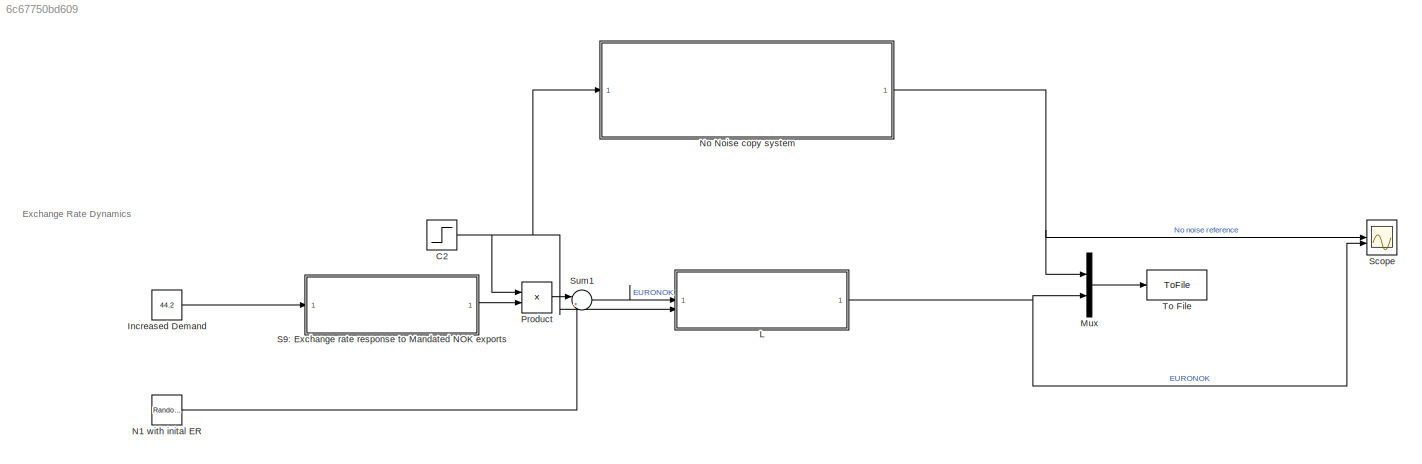
MODEL slx_6c67750bd609
KIND model
CONFIG AbsTol = auto
CONFIG EnableMultiTasking = off
CONFIG FixedStep = auto
CONFIG MaxStep = auto
CONFIG MinStep = auto
CONFIG RelTol = 1e-3
CONFIG SampleTimeConstraint = Unconstrained
CONFIG SolverName = FixedStepAuto
CONFIG StartTime = 0.0
CONFIG StopTime = 1.04
BLOCK [Step] C2
  SampleTime = 0
  Time = 0.1
BLOCK [Constant] Increased Demand
  Value = 44.2
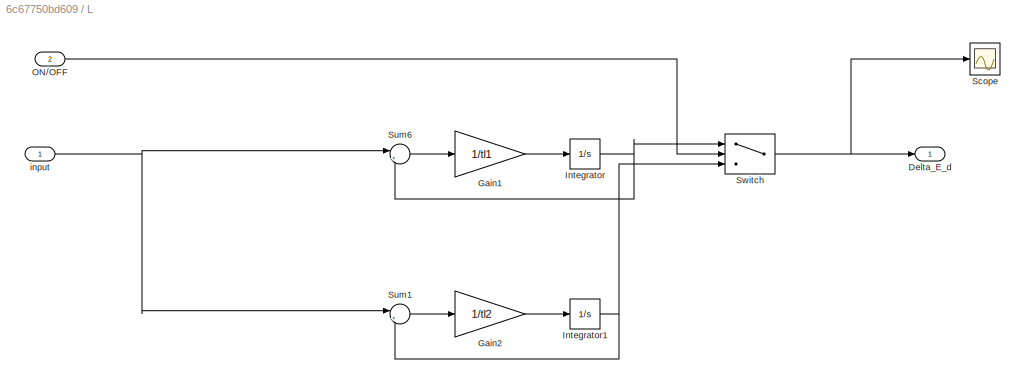
BLOCK [SubSystem] L
BLOCK [Outport] L/Delta_E_d
BLOCK [Gain] L/Gain1
  Gain = 1/tl1
BLOCK [Gain] L/Gain2
  Gain = 1/tl2
BLOCK [Integrator] L/Integrator
  InitialCondition = 12
BLOCK [Integrator] L/Integrator1
  InitialCondition = 12
BLOCK [Inport] L/ON//OFF
  Port = 2
BLOCK [Scope] L/Scope
  Floating = off
  NumInputPorts = 1
  ScopeSpecificationString = Simulink.scopes.TimeScopeBlockCfg('CurrentConfiguration', extmgr.ConfigurationSet(extmgr.Configuration('Core','General UI',true),extmgr.Configuration('Core','Source UI',true),extmgr.Configuration('Sources','WiredSimulink',true,'DataLoggingVariableName','ScopeData3'),extmgr.Configuration('Visuals','Time Domain',true,'SerializedDisplays',{struct('MinYLimReal','-1.50239','MaxYLimReal','13.52148','YLa...<+1561ch>
BLOCK [Sum] L/Sum1
  Inputs = |+-
BLOCK [Sum] L/Sum6
  Inputs = |+-
BLOCK [Switch] L/Switch
  Criteria = u2 > Threshold
  InputSameDT = off
  SaturateOnIntegerOverflow = off
BLOCK [Inport] L/input
BLOCK [Mux] Mux
  DisplayOption = bar
  Inputs = 2
BLOCK [RandomNumber] N1 with inital ER
  Mean = 12
  SampleTime = 0.00142857
  Seed = 23341
  Variance = 0.00001259
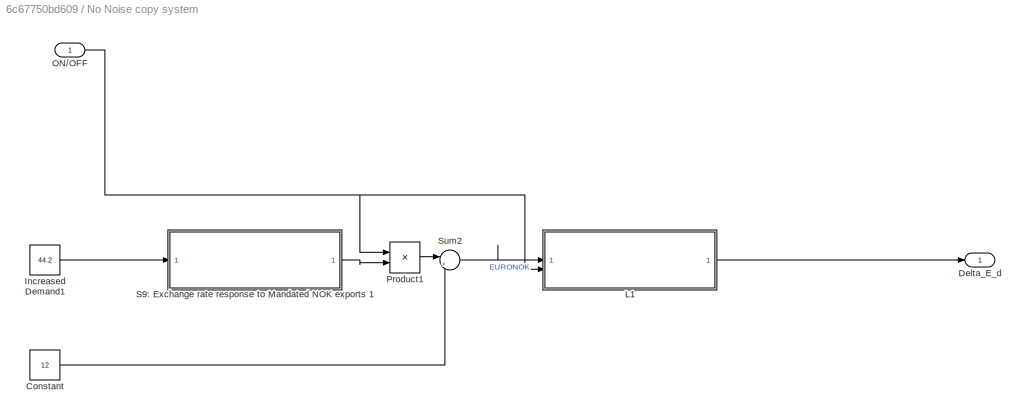
BLOCK [SubSystem] No Noise copy system
BLOCK [Constant] No Noise copy system/Constant
  Value = 12
BLOCK [Outport] No Noise copy system/Delta_E_d
BLOCK [Constant] No Noise copy system/Increased Demand1
  Value = 44.2
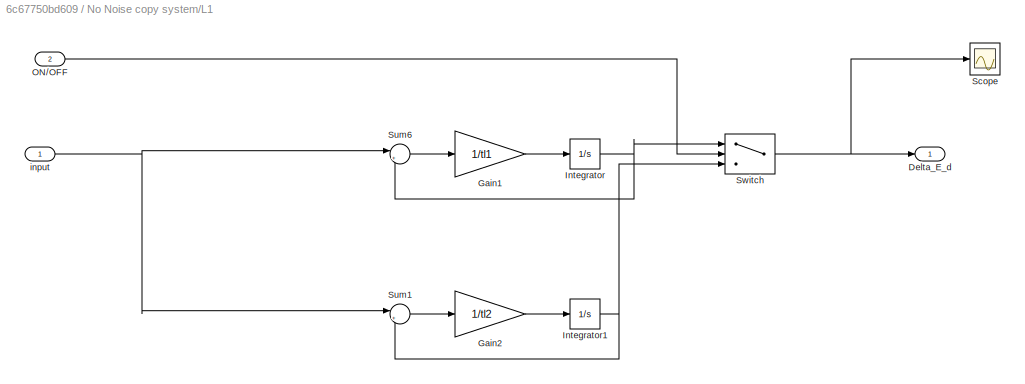
BLOCK [SubSystem] No Noise copy system/L1
BLOCK [Outport] No Noise copy system/L1/Delta_E_d
BLOCK [Gain] No Noise copy system/L1/Gain1
  Gain = 1/tl1
BLOCK [Gain] No Noise copy system/L1/Gain2
  Gain = 1/tl2
BLOCK [Integrator] No Noise copy system/L1/Integrator
  InitialCondition = 12
BLOCK [Integrator] No Noise copy system/L1/Integrator1
  InitialCondition = 12
BLOCK [Inport] No Noise copy system/L1/ON//OFF
  Port = 2
BLOCK [Scope] No Noise copy system/L1/Scope
  Floating = off
  NumInputPorts = 1
  ScopeSpecificationString = Simulink.scopes.TimeScopeBlockCfg('CurrentConfiguration', extmgr.ConfigurationSet(extmgr.Configuration('Core','General UI',true),extmgr.Configuration('Core','Source UI',true),extmgr.Configuration('Sources','WiredSimulink',true,'DataLoggingVariableName','ScopeData3'),extmgr.Configuration('Visuals','Time Domain',true,'SerializedDisplays',{struct('MinYLimReal','-1.50239','MaxYLimReal','13.52148','YLa...<+1561ch>
BLOCK [Sum] No Noise copy system/L1/Sum1
  Inputs = |+-
BLOCK [Sum] No Noise copy system/L1/Sum6
  Inputs = |+-
BLOCK [Switch] No Noise copy system/L1/Switch
  Criteria = u2 > Threshold
  InputSameDT = off
  SaturateOnIntegerOverflow = off
BLOCK [Inport] No Noise copy system/L1/input
BLOCK [Inport] No Noise copy system/ON//OFF
BLOCK [Product] No Noise copy system/Product1
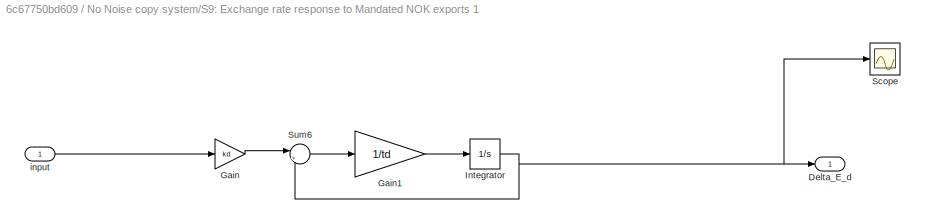
BLOCK [SubSystem] No Noise copy system/S9: Exchange rate response to Mandated NOK exports 1
BLOCK [Outport] No Noise copy system/S9: Exchange rate response to Mandated NOK exports 1/Delta_E_d
BLOCK [Gain] No Noise copy system/S9: Exchange rate response to Mandated NOK exports 1/Gain
  Gain = kd
BLOCK [Gain] No Noise copy system/S9: Exchange rate response to Mandated NOK exports 1/Gain1
  Gain = 1/td
BLOCK [Integrator] No Noise copy system/S9: Exchange rate response to Mandated NOK exports 1/Integrator
BLOCK [Scope] No Noise copy system/S9: Exchange rate response to Mandated NOK exports 1/Scope
  Floating = off
  NumInputPorts = 1
  ScopeSpecificationString = Simulink.scopes.TimeScopeBlockCfg('CurrentConfiguration', extmgr.ConfigurationSet(extmgr.Configuration('Core','General UI',true),extmgr.Configuration('Core','Source UI',true),extmgr.Configuration('Sources','WiredSimulink',true,'DataLoggingVariableName','ScopeData3'),extmgr.Configuration('Visuals','Time Domain',true,'SerializedDisplays',{struct('MinYLimReal','-0.00097','MaxYLimReal','0.00543','YLab...<+1388ch>
BLOCK [Sum] No Noise copy system/S9: Exchange rate response to Mandated NOK exports 1/Sum6
  Inputs = |+-
BLOCK [Inport] No Noise copy system/S9: Exchange rate response to Mandated NOK exports 1/input
BLOCK [Sum] No Noise copy system/Sum2
  Inputs = |++
BLOCK [Product] Product
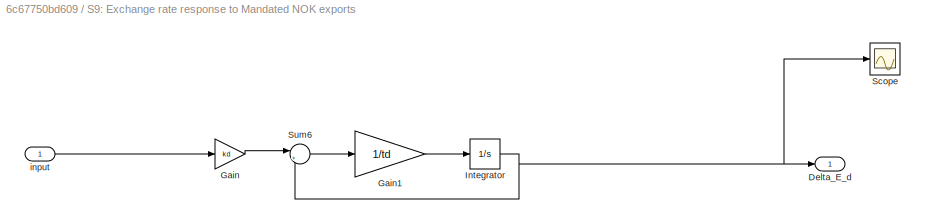
BLOCK [SubSystem] S9: Exchange rate response to Mandated NOK exports 
BLOCK [Outport] S9: Exchange rate response to Mandated NOK exports /Delta_E_d
BLOCK [Gain] S9: Exchange rate response to Mandated NOK exports /Gain
  Gain = kd
BLOCK [Gain] S9: Exchange rate response to Mandated NOK exports /Gain1
  Gain = 1/td
BLOCK [Integrator] S9: Exchange rate response to Mandated NOK exports /Integrator
BLOCK [Scope] S9: Exchange rate response to Mandated NOK exports /Scope
  Floating = off
  NumInputPorts = 1
  ScopeSpecificationString = Simulink.scopes.TimeScopeBlockCfg('CurrentConfiguration', extmgr.ConfigurationSet(extmgr.Configuration('Core','General UI',true),extmgr.Configuration('Core','Source UI',true),extmgr.Configuration('Sources','WiredSimulink',true,'DataLoggingVariableName','ScopeData3'),extmgr.Configuration('Visuals','Time Domain',true,'SerializedDisplays',{struct('MinYLimReal','-0.00097','MaxYLimReal','0.00543','YLab...<+1388ch>
BLOCK [Sum] S9: Exchange rate response to Mandated NOK exports /Sum6
  Inputs = |+-
BLOCK [Inport] S9: Exchange rate response to Mandated NOK exports /input
BLOCK [Scope] Scope
  Floating = off
  NumInputPorts = 2
  ScopeSpecificationString = Simulink.scopes.TimeScopeBlockCfg('CurrentConfiguration', extmgr.ConfigurationSet(extmgr.Configuration('Core','General UI',true),extmgr.Configuration('Core','Source UI',true),extmgr.Configuration('Sources','WiredSimulink',true),extmgr.Configuration('Visuals','Time Domain',true,'SerializedDisplays',{struct('MinYLimReal','11.95878','MaxYLimReal','12.02203','YLabelReal','','MinYLimMag','11.95878','Ma...<+2113ch>
BLOCK [Sum] Sum1
  Inputs = |++
BLOCK [ToFile] To File
  Filename = n3.mat
  MatrixName = n3
  SampleTime = 0.0001
ANNOTATION (root): Exchange Rate Dynamics
NET C2:1 -> L:2, No Noise copy system:1, Product:1
LINE Increased Demand:1 -> S9: Exchange rate response to Mandated NOK exports :1
LINE L/Gain1:1 -> L/Integrator:1
LINE L/Gain2:1 -> L/Integrator1:1
NET L/Integrator1:1 -> L/Sum1:2, L/Switch:3
NET L/Integrator:1 -> L/Sum6:2, L/Switch:1
LINE L/ON//OFF:1 -> L/Switch:2
LINE L/Sum1:1 -> L/Gain2:1
LINE L/Sum6:1 -> L/Gain1:1
NET L/Switch:1 -> L/Delta_E_d:1, L/Scope:1
NET L/input:1 -> L/Sum1:1, L/Sum6:1
NET L:1 -> Mux:2, Scope:2
LINE Mux:1 -> To File:1
LINE N1 with inital ER:1 -> Sum1:2
LINE No Noise copy system/Constant:1 -> No Noise copy system/Sum2:2
LINE No Noise copy system/Increased Demand1:1 -> No Noise copy system/S9: Exchange rate response to Mandated NOK exports 1:1
LINE No Noise copy system/L1/Gain1:1 -> No Noise copy system/L1/Integrator:1
LINE No Noise copy system/L1/Gain2:1 -> No Noise copy system/L1/Integrator1:1
NET No Noise copy system/L1/Integrator1:1 -> No Noise copy system/L1/Sum1:2, No Noise copy system/L1/Switch:3
NET No Noise copy system/L1/Integrator:1 -> No Noise copy system/L1/Sum6:2, No Noise copy system/L1/Switch:1
LINE No Noise copy system/L1/ON//OFF:1 -> No Noise copy system/L1/Switch:2
LINE No Noise copy system/L1/Sum1:1 -> No Noise copy system/L1/Gain2:1
LINE No Noise copy system/L1/Sum6:1 -> No Noise copy system/L1/Gain1:1
NET No Noise copy system/L1/Switch:1 -> No Noise copy system/L1/Delta_E_d:1, No Noise copy system/L1/Scope:1
NET No Noise copy system/L1/input:1 -> No Noise copy system/L1/Sum1:1, No Noise copy system/L1/Sum6:1
LINE No Noise copy system/L1:1 -> No Noise copy system/Delta_E_d:1
NET No Noise copy system/ON//OFF:1 -> No Noise copy system/L1:2, No Noise copy system/Product1:1
LINE No Noise copy system/Product1:1 -> No Noise copy system/Sum2:1
LINE No Noise copy system/S9: Exchange rate response to Mandated NOK exports 1/Gain1:1 -> No Noise copy system/S9: Exchange rate response to Mandated NOK exports 1/Integrator:1
LINE No Noise copy system/S9: Exchange rate response to Mandated NOK exports 1/Gain:1 -> No Noise copy system/S9: Exchange rate response to Mandated NOK exports 1/Sum6:1
NET No Noise copy system/S9: Exchange rate response to Mandated NOK exports 1/Integrator:1 -> No Noise copy system/S9: Exchange rate response to Mandated NOK exports 1/Delta_E_d:1, No Noise copy system/S9: Exchange rate response to Mandated NOK exports 1/Scope:1, No Noise copy system/S9: Exchange rate response to Mandated NOK exports 1/Sum6:2
LINE No Noise copy system/S9: Exchange rate response to Mandated NOK exports 1/Sum6:1 -> No Noise copy system/S9: Exchange rate response to Mandated NOK exports 1/Gain1:1
LINE No Noise copy system/S9: Exchange rate response to Mandated NOK exports 1/input:1 -> No Noise copy system/S9: Exchange rate response to Mandated NOK exports 1/Gain:1
LINE No Noise copy system/S9: Exchange rate response to Mandated NOK exports 1:1 -> No Noise copy system/Product1:2
LINE No Noise copy system/Sum2:1 -> No Noise copy system/L1:1
NET No Noise copy system:1 -> Mux:1, Scope:1
LINE Product:1 -> Sum1:1
LINE S9: Exchange rate response to Mandated NOK exports /Gain1:1 -> S9: Exchange rate response to Mandated NOK exports /Integrator:1
LINE S9: Exchange rate response to Mandated NOK exports /Gain:1 -> S9: Exchange rate response to Mandated NOK exports /Sum6:1
NET S9: Exchange rate response to Mandated NOK exports /Integrator:1 -> S9: Exchange rate response to Mandated NOK exports /Delta_E_d:1, S9: Exchange rate response to Mandated NOK exports /Scope:1, S9: Exchange rate response to Mandated NOK exports /Sum6:2
LINE S9: Exchange rate response to Mandated NOK exports /Sum6:1 -> S9: Exchange rate response to Mandated NOK exports /Gain1:1
LINE S9: Exchange rate response to Mandated NOK exports /input:1 -> S9: Exchange rate response to Mandated NOK exports /Gain:1
LINE S9: Exchange rate response to Mandated NOK exports :1 -> Product:2
LINE Sum1:1 -> L:1
note: NET lines group one-source signal fan-out (src -> all destinations, sorted); 1:1 wires keep LINE
